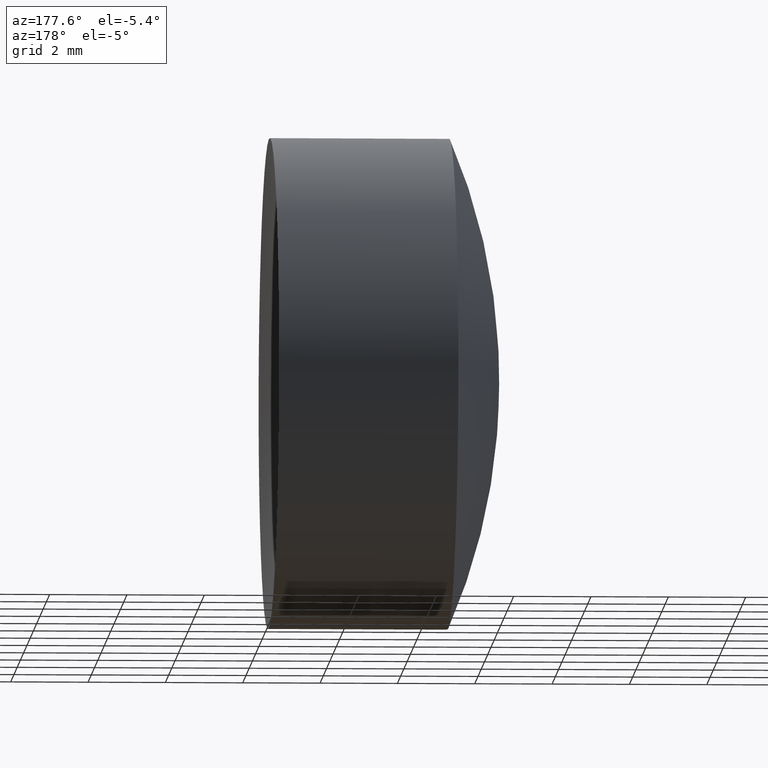
[diagram: clean part render]
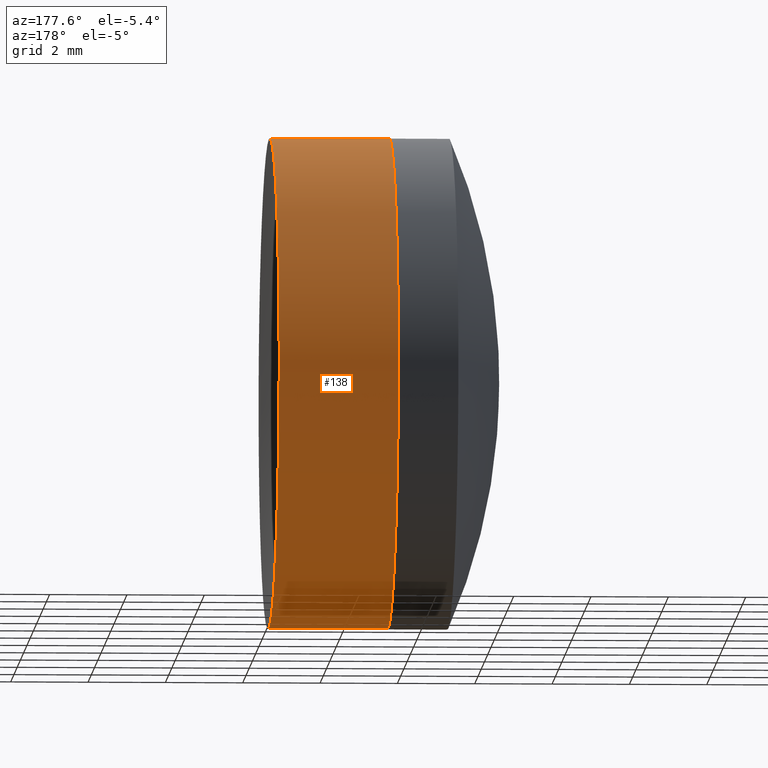
[diagram: same view with one face highlighted and labeled with its STEP entity id]
A machine part, auxiliary view. The second image highlights one B-rep face of the part: STEP entity #138.
In plain terms, the highlighted cylindrical surface (partial cylindrical patch) has radius 6.35 mm, axis along (-1, -0, -0).
Its self-contained STEP definition (entity closure, byte-faithful):
#1 = EDGE_LOOP ( 'NONE', ( #139, #209, #227, #150 ) ) ;
#22 = CARTESIAN_POINT ( 'NONE',  ( -0.5519199926577972300, 7.776507174585682300E-016, -6.349999999999990800 ) ) ;
#25 = LINE ( 'NONE', #307, #317 ) ;
#32 = DIRECTION ( 'NONE',  ( -1.000000000000000000, -0.0000000000000000000, -0.0000000000000000000 ) ) ;
#33 = CARTESIAN_POINT ( 'NONE',  ( -0.5519199926577972300, 0.0000000000000000000, 0.0000000000000000000 ) ) ;
#37 = DIRECTION ( 'NONE',  ( 0.0000000000000000000, 0.0000000000000000000, 1.000000000000000000 ) ) ;
#49 = EDGE_CURVE ( 'NONE', #215, #295, #222, .T. ) ;
#53 = FACE_OUTER_BOUND ( 'NONE', #1, .T. ) ;
#62 = CARTESIAN_POINT ( 'NONE',  ( 28.74217880449238300, 0.0000000000000000000, 0.0000000000000000000 ) ) ;
#65 = CARTESIAN_POINT ( 'NONE',  ( 28.74217880449238300, -7.776507174585678400E-016, 6.349999999999989000 ) ) ;
#73 = EDGE_CURVE ( 'NONE', #215, #133, #25, .T. ) ;
#99 = DIRECTION ( 'NONE',  ( -1.000000000000000000, -0.0000000000000000000, -0.0000000000000000000 ) ) ;
#122 = CARTESIAN_POINT ( 'NONE',  ( 28.74217880449238300, 0.0000000000000000000, -6.349999999999987200 ) ) ;
#124 = LINE ( 'NONE', #22, #134 ) ;
#133 = VERTEX_POINT ( 'NONE', #65 ) ;
#134 = VECTOR ( 'NONE', #99, 1000.000000000000000 ) ;
#138 = ADVANCED_FACE ( 'NONE', ( #53 ), #193, .T. ) ;
#139 = ORIENTED_EDGE ( 'NONE', *, *, #49, .T. ) ;
#143 = AXIS2_PLACEMENT_3D ( 'NONE', #244, #173, #196 ) ;
#146 = VERTEX_POINT ( 'NONE', #122 ) ;
#150 = ORIENTED_EDGE ( 'NONE', *, *, #73, .F. ) ;
#151 = DIRECTION ( 'NONE',  ( 0.0000000000000000000, 0.0000000000000000000, 1.000000000000000000 ) ) ;
#173 = DIRECTION ( 'NONE',  ( -1.000000000000000000, -0.0000000000000000000, -0.0000000000000000000 ) ) ;
#185 = EDGE_CURVE ( 'NONE', #295, #146, #124, .T. ) ;
#193 = CYLINDRICAL_SURFACE ( 'NONE', #218, 6.349999999999990800 ) ;
#196 = DIRECTION ( 'NONE',  ( 0.0000000000000000000, 0.0000000000000000000, 1.000000000000000000 ) ) ;
#209 = ORIENTED_EDGE ( 'NONE', *, *, #185, .T. ) ;
#215 = VERTEX_POINT ( 'NONE', #345 ) ;
#218 = AXIS2_PLACEMENT_3D ( 'NONE', #33, #313, #151 ) ;
#222 = CIRCLE ( 'NONE', #143, 6.349999999999989900 ) ;
#226 = DIRECTION ( 'NONE',  ( -1.000000000000000000, -0.0000000000000000000, -0.0000000000000000000 ) ) ;
#227 = ORIENTED_EDGE ( 'NONE', *, *, #287, .F. ) ;
#239 = AXIS2_PLACEMENT_3D ( 'NONE', #62, #226, #37 ) ;
#244 = CARTESIAN_POINT ( 'NONE',  ( 31.82633082363418000, 0.0000000000000000000, 0.0000000000000000000 ) ) ;
#266 = CIRCLE ( 'NONE', #239, 6.349999999999990800 ) ;
#287 = EDGE_CURVE ( 'NONE', #133, #146, #266, .T. ) ;
#295 = VERTEX_POINT ( 'NONE', #336 ) ;
#307 = CARTESIAN_POINT ( 'NONE',  ( -0.5519199926577972300, 0.0000000000000000000, 6.349999999999990800 ) ) ;
#313 = DIRECTION ( 'NONE',  ( -1.000000000000000000, -0.0000000000000000000, -0.0000000000000000000 ) ) ;
#317 = VECTOR ( 'NONE', #32, 1000.000000000000000 ) ;
#336 = CARTESIAN_POINT ( 'NONE',  ( 31.82633082363418000, 0.0000000000000000000, -6.349999999999999600 ) ) ;
#345 = CARTESIAN_POINT ( 'NONE',  ( 31.82633082363418000, -7.776507174585692200E-016, 6.349999999999999600 ) ) ;